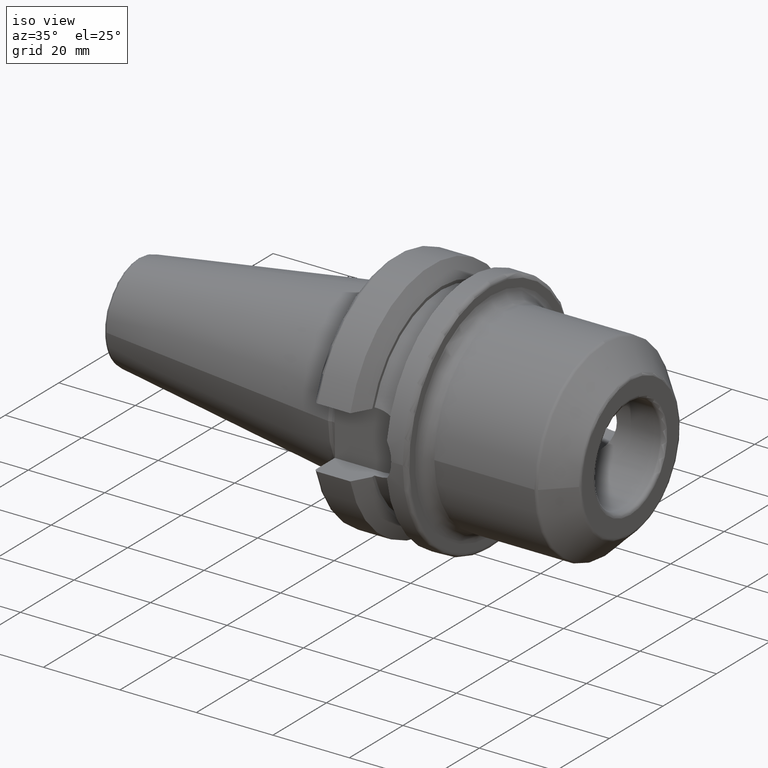
[diagram: clean part render]
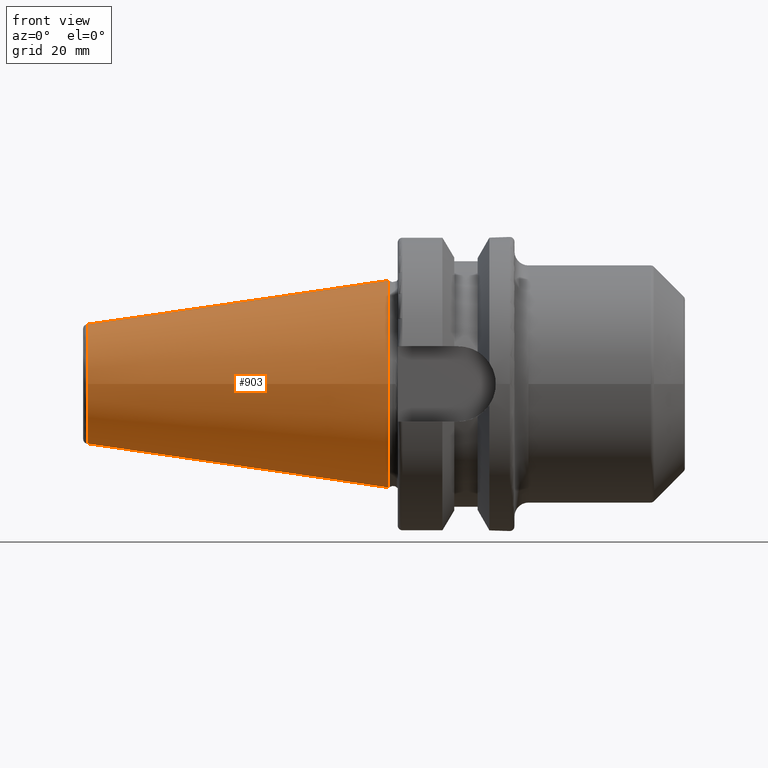
[diagram: tour spotlight — one face highlighted and labeled with its STEP entity id]
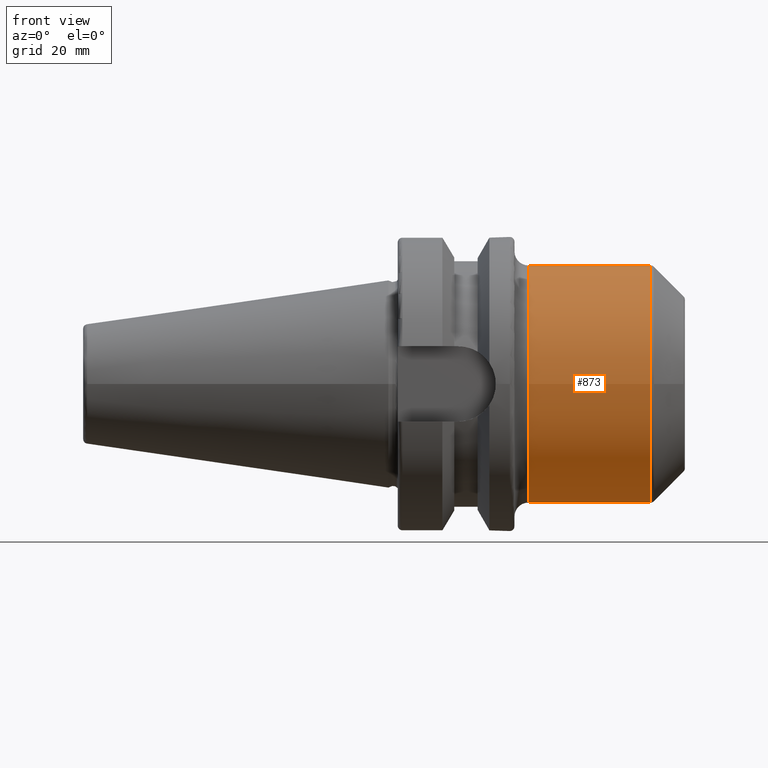
[diagram: tour spotlight — one face highlighted and labeled with its STEP entity id]
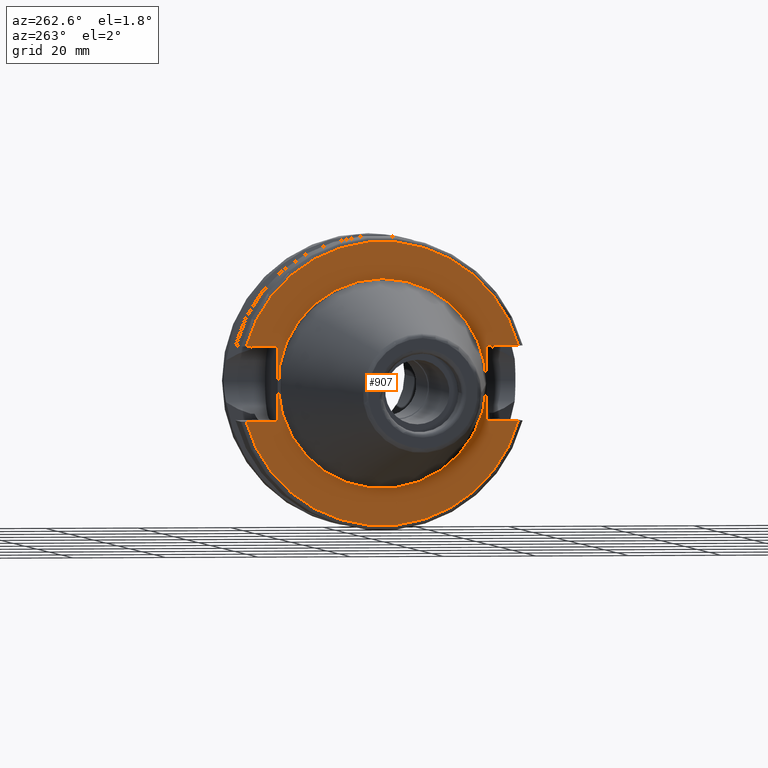
[diagram: tour spotlight — one face highlighted and labeled with its STEP entity id]
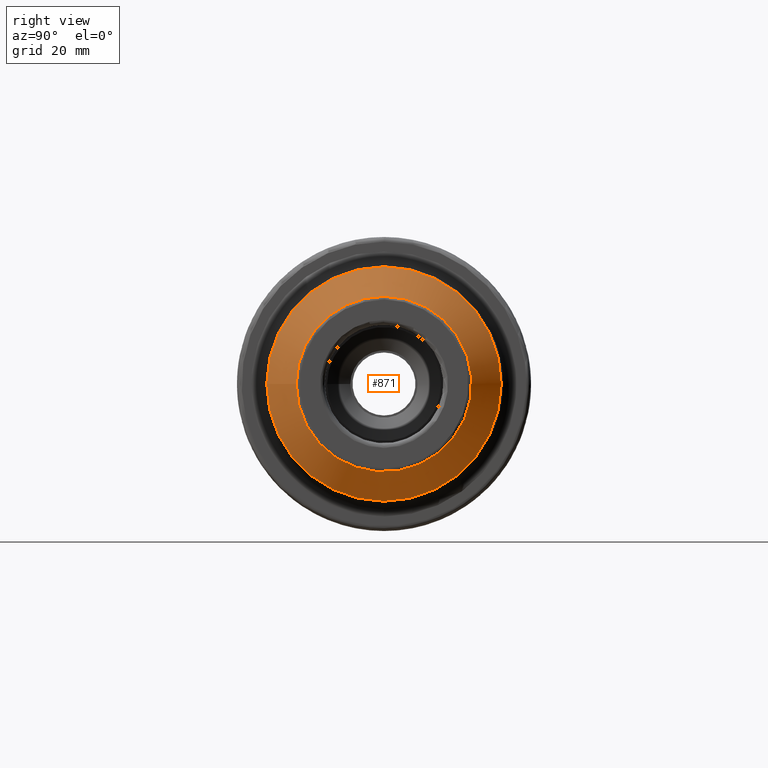
[diagram: tour spotlight — one face highlighted and labeled with its STEP entity id]
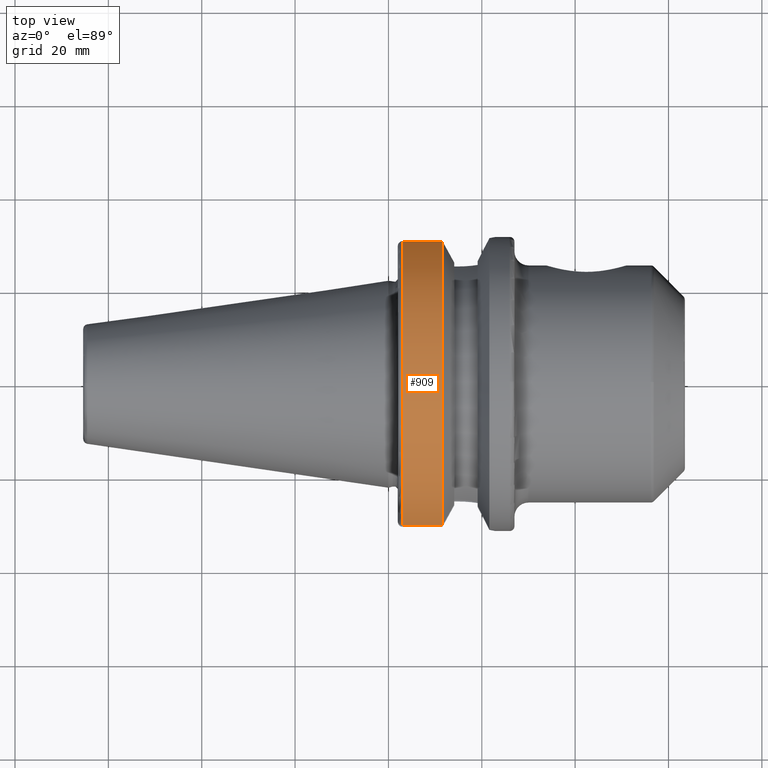
[diagram: tour spotlight — one face highlighted and labeled with its STEP entity id]
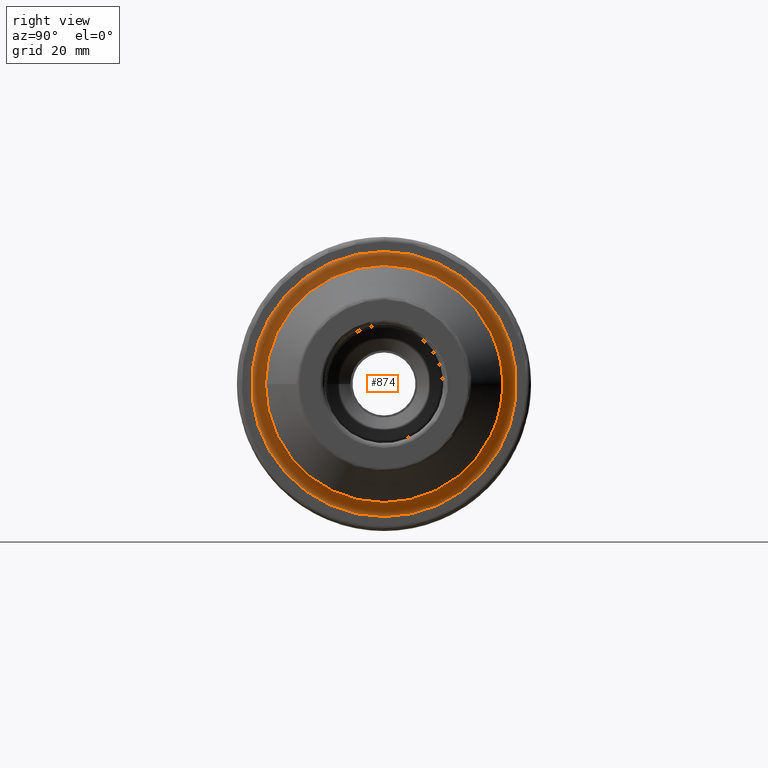
[diagram: tour spotlight — one face highlighted and labeled with its STEP entity id]
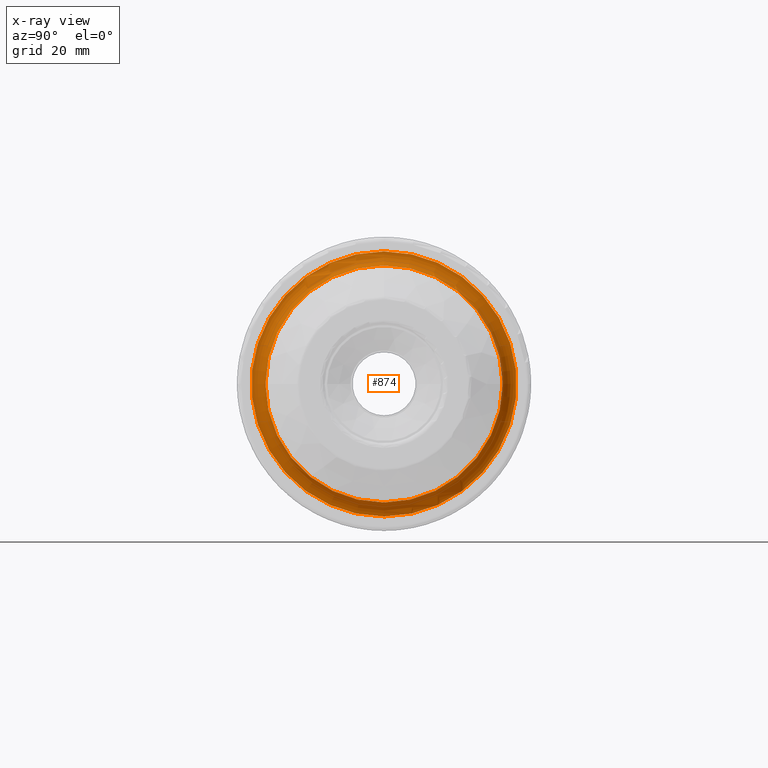
[diagram: x-ray of the same camera — body ghosted, this tour face saturated]
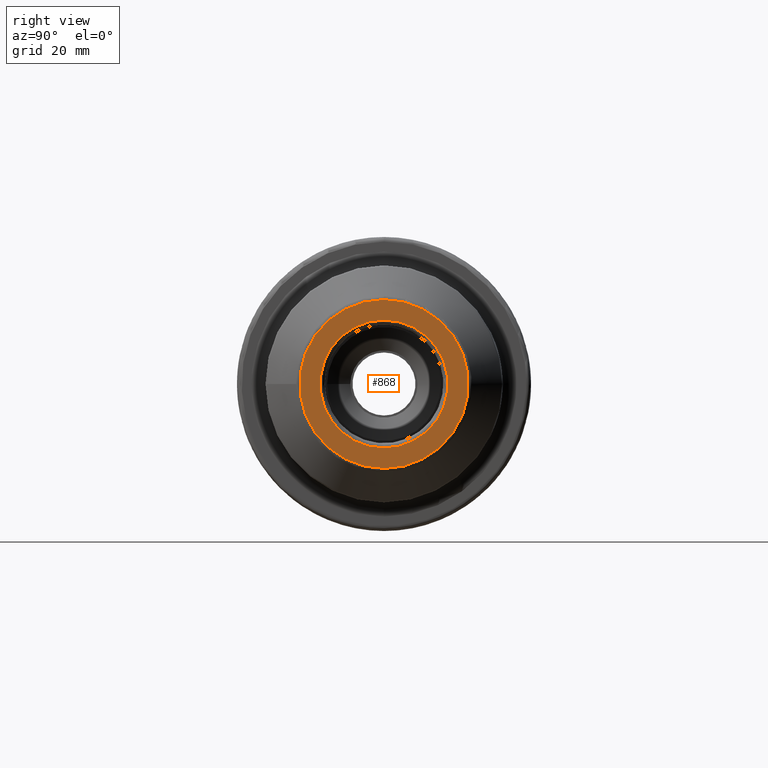
[diagram: tour spotlight — one face highlighted and labeled with its STEP entity id]
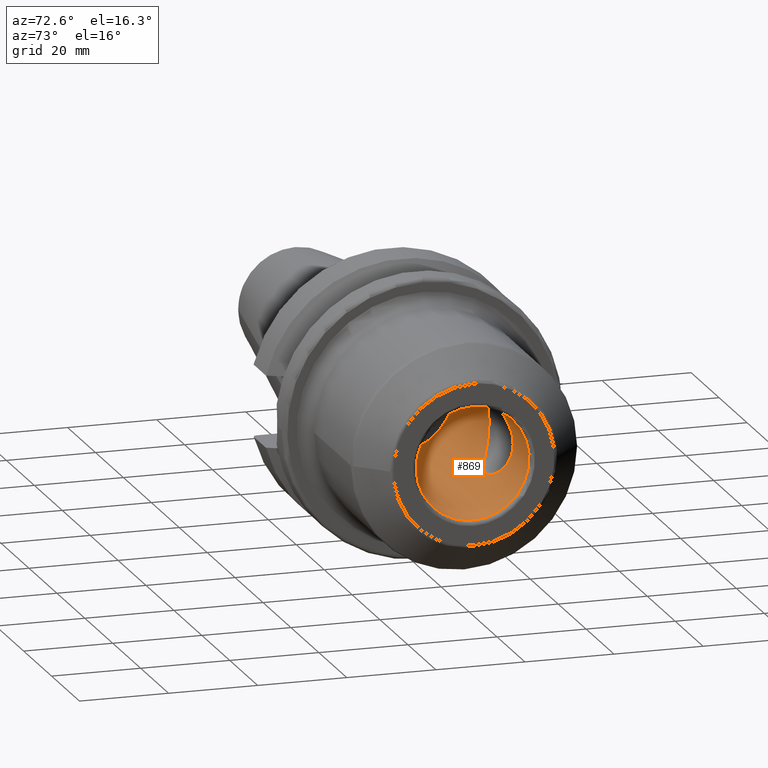
[diagram: tour spotlight — one face highlighted and labeled with its STEP entity id]
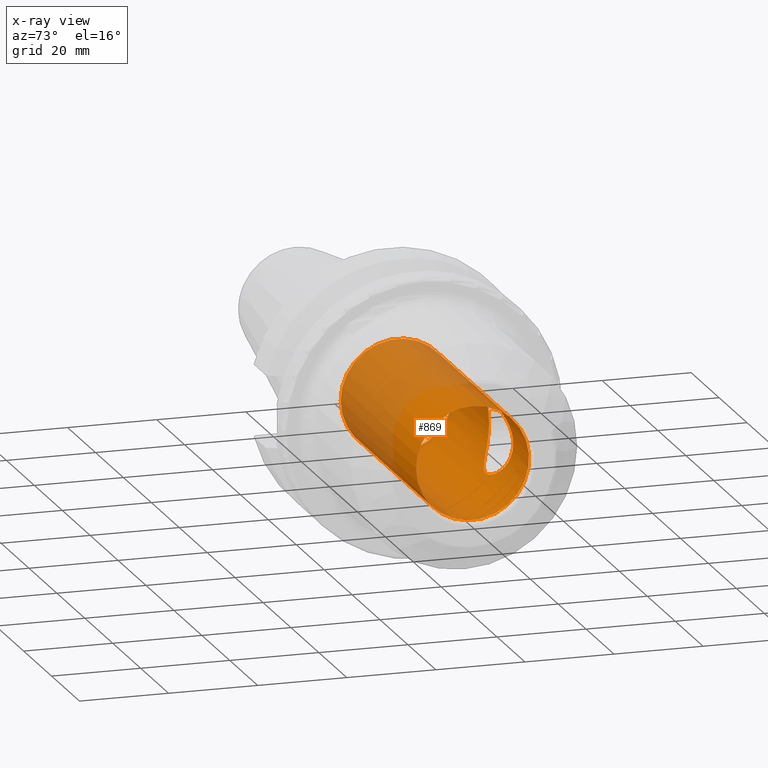
[diagram: x-ray of the same camera — body ghosted, this tour face saturated]
A machine part: a face-by-face anatomy tour. The part has 54 B-rep faces; the first image is the clean iso view, then the 8 largest visible faces are spotlighted one at a time (largest first), each with its STEP entity span.

Face 1 — front view, entity #903. In plain terms, the highlighted conical surface has half-angle 8.297 deg.
Definition (entity closure, byte-faithful):
#25=CONICAL_SURFACE('',#1025,17.5186442890469,0.144812498238939);
#88=LINE('',#1762,#134);
#134=VECTOR('',#1271,17.5186442890469);
#220=FACE_OUTER_BOUND('',#281,.T.);
#281=EDGE_LOOP('',(#776,#777,#778,#779,#780));
#343=CIRCLE('',#1021,12.8122885780937);
#344=CIRCLE('',#1022,12.8122885780937);
#347=CIRCLE('',#1026,22.225);
#441=VERTEX_POINT('',#1752);
#442=VERTEX_POINT('',#1753);
#444=VERTEX_POINT('',#1760);
#559=EDGE_CURVE('',#441,#442,#343,.T.);
#560=EDGE_CURVE('',#442,#441,#344,.T.);
#563=EDGE_CURVE('',#444,#444,#347,.T.);
#564=EDGE_CURVE('',#444,#441,#88,.T.);
#776=ORIENTED_EDGE('',*,*,#563,.F.);
#777=ORIENTED_EDGE('',*,*,#564,.T.);
#778=ORIENTED_EDGE('',*,*,#559,.T.);
#779=ORIENTED_EDGE('',*,*,#560,.T.);
#780=ORIENTED_EDGE('',*,*,#564,.F.);
#903=ADVANCED_FACE('',(#220),#25,.T.);
#1021=AXIS2_PLACEMENT_3D('',#1754,#1259,#1260);
#1022=AXIS2_PLACEMENT_3D('',#1755,#1261,#1262);
#1025=AXIS2_PLACEMENT_3D('',#1759,#1267,#1268);
#1026=AXIS2_PLACEMENT_3D('',#1761,#1269,#1270);
#1259=DIRECTION('center_axis',(1.,0.,0.));
#1260=DIRECTION('ref_axis',(0.,0.,-1.));
#1261=DIRECTION('center_axis',(1.,0.,0.));
#1262=DIRECTION('ref_axis',(0.,0.,-1.));
#1267=DIRECTION('center_axis',(1.,0.,0.));
#1268=DIRECTION('ref_axis',(0.,1.,0.));
#1269=DIRECTION('center_axis',(1.,0.,0.));
#1270=DIRECTION('ref_axis',(0.,0.,-1.));
#1271=DIRECTION('',(-0.989532981063282,0.144306893071729,1.76724974695192E-17));
#1752=CARTESIAN_POINT('',(-64.5443068930717,-12.8122885780937,-1.56905281969147E-15));
#1753=CARTESIAN_POINT('',(-64.5443068930717,-1.56905281969147E-15,12.8122885780937));
#1754=CARTESIAN_POINT('Origin',(-64.5443068930717,0.,0.));
#1755=CARTESIAN_POINT('Origin',(-64.5443068930717,0.,0.));
#1759=CARTESIAN_POINT('Origin',(-32.2721534465359,0.,0.));
#1760=CARTESIAN_POINT('',(4.44089209850063E-15,-22.225,-2.72177751110499E-15));
#1761=CARTESIAN_POINT('Origin',(0.,0.,0.));
#1762=CARTESIAN_POINT('',(-32.2721534465359,-17.5186442890469,-2.14541516539823E-15));

Face 2 — front view, entity #873. In plain terms, the highlighted cylindrical surface (bore or boss wall) has radius 25.4 mm, axis along (1, 0, 0).
Definition (entity closure, byte-faithful):
#31=B_SPLINE_CURVE_WITH_KNOTS('',3,(#1445,#1446,#1447,#1448,#1449,#1450,
#1451,#1452,#1453,#1454,#1455,#1456,#1457,#1458,#1459,#1460,#1461,#1462),
 .UNSPECIFIED.,.F.,.F.,(4,2,2,2,2,2,2,2,4),(1.31655491402046,1.64560958511095,
1.97466425620143,2.30388704212118,2.63310982804092,2.96233261396066,3.2915553998804,
3.62061007097089,3.94966474206138),.UNSPECIFIED.);
#32=B_SPLINE_CURVE_WITH_KNOTS('',3,(#1463,#1464,#1465,#1466,#1467,#1468,
#1469,#1470,#1471,#1472,#1473,#1474,#1475,#1476,#1477,#1478,#1479,#1480,
#1481),.UNSPECIFIED.,.F.,.F.,(4,2,2,2,3,2,2,2,4),(3.94966474206138,4.27871941315187,
4.60777408424235,4.9369968701621,5.26621965608184,5.59544244200158,5.92466522792132,
6.25371989901181,6.5827745701023),.UNSPECIFIED.);
#50=LINE('',#1439,#96);
#96=VECTOR('',#1109,25.4);
#141=CYLINDRICAL_SURFACE('',#964,25.4);
#158=FACE_BOUND('',#247,.T.);
#190=FACE_OUTER_BOUND('',#246,.T.);
#246=EDGE_LOOP('',(#620,#621,#622,#623,#624,#625));
#247=EDGE_LOOP('',(#626,#627));
#314=CIRCLE('',#962,25.4);
#315=CIRCLE('',#963,25.4);
#316=CIRCLE('',#965,25.4);
#317=CIRCLE('',#966,25.4);
#378=VERTEX_POINT('',#1432);
#379=VERTEX_POINT('',#1434);
#380=VERTEX_POINT('',#1438);
#381=VERTEX_POINT('',#1440);
#382=VERTEX_POINT('',#1443);
#383=VERTEX_POINT('',#1444);
#471=EDGE_CURVE('',#378,#379,#314,.T.);
#472=EDGE_CURVE('',#379,#378,#315,.T.);
#473=EDGE_CURVE('',#379,#380,#50,.T.);
#474=EDGE_CURVE('',#381,#380,#316,.T.);
#475=EDGE_CURVE('',#380,#381,#317,.T.);
#476=EDGE_CURVE('',#382,#383,#31,.T.);
#477=EDGE_CURVE('',#383,#382,#32,.T.);
#620=ORIENTED_EDGE('',*,*,#472,.F.);
#621=ORIENTED_EDGE('',*,*,#473,.T.);
#622=ORIENTED_EDGE('',*,*,#474,.F.);
#623=ORIENTED_EDGE('',*,*,#475,.F.);
#624=ORIENTED_EDGE('',*,*,#473,.F.);
#625=ORIENTED_EDGE('',*,*,#471,.F.);
#626=ORIENTED_EDGE('',*,*,#476,.T.);
#627=ORIENTED_EDGE('',*,*,#477,.T.);
#873=ADVANCED_FACE('',(#190,#158),#141,.T.);
#962=AXIS2_PLACEMENT_3D('',#1435,#1103,#1104);
#963=AXIS2_PLACEMENT_3D('',#1436,#1105,#1106);
#964=AXIS2_PLACEMENT_3D('',#1437,#1107,#1108);
#965=AXIS2_PLACEMENT_3D('',#1441,#1110,#1111);
#966=AXIS2_PLACEMENT_3D('',#1442,#1112,#1113);
#1103=DIRECTION('center_axis',(1.,0.,0.));
#1104=DIRECTION('ref_axis',(0.,-1.,1.83697019872103E-16));
#1105=DIRECTION('center_axis',(1.,0.,0.));
#1106=DIRECTION('ref_axis',(0.,-1.,1.83697019872103E-16));
#1107=DIRECTION('center_axis',(1.,0.,0.));
#1108=DIRECTION('ref_axis',(0.,1.,0.));
#1109=DIRECTION('',(-1.,0.,0.));
#1110=DIRECTION('center_axis',(-1.,0.,0.));
#1111=DIRECTION('ref_axis',(0.,-1.,-1.22464679914735E-16));
#1112=DIRECTION('center_axis',(-1.,0.,0.));
#1113=DIRECTION('ref_axis',(0.,-1.,-1.22464679914735E-16));
#1432=CARTESIAN_POINT('',(56.1857864376269,-3.11060286983428E-15,25.4));
#1434=CARTESIAN_POINT('',(56.1857864376269,-25.4,-3.11060286983428E-15));
#1435=CARTESIAN_POINT('Origin',(56.1857864376269,0.,0.));
#1436=CARTESIAN_POINT('Origin',(56.1857864376269,0.,0.));
#1437=CARTESIAN_POINT('Origin',(41.8,0.,0.));
#1438=CARTESIAN_POINT('',(30.,-25.4,-3.11060286983428E-15));
#1439=CARTESIAN_POINT('',(41.8,-25.4,-3.11060286983428E-15));
#1440=CARTESIAN_POINT('',(30.,-3.11060286983428E-15,-25.4));
#1441=CARTESIAN_POINT('Origin',(30.,0.,0.));
#1442=CARTESIAN_POINT('Origin',(30.,0.,0.));
#1443=CARTESIAN_POINT('',(33.7386,25.4,0.));
#1444=CARTESIAN_POINT('',(51.0614,25.4,0.));
#1445=CARTESIAN_POINT('Ctrl Pts',(33.7386,25.4,0.));
#1446=CARTESIAN_POINT('Ctrl Pts',(33.7386,25.4,-1.09684890363496));
#1447=CARTESIAN_POINT('Ctrl Pts',(33.9595948169007,25.3220031940979,-2.26094524708732));
#1448=CARTESIAN_POINT('Ctrl Pts',(34.8463153214761,25.0403985621892,-4.39251169936721));
#1449=CARTESIAN_POINT('Ctrl Pts',(35.5115750791868,24.8403510547288,-5.3606444283251));
#1450=CARTESIAN_POINT('Ctrl Pts',(37.0397458450538,24.4606706295937,-6.88881519419209));
#1451=CARTESIAN_POINT('Ctrl Pts',(38.0077239172898,24.2552791261336,-7.55377494668732));
#1452=CARTESIAN_POINT('Ctrl Pts',(40.1387139037547,23.9612169082044,-8.44027113836589));
#1453=CARTESIAN_POINT('Ctrl Pts',(41.3025907136008,23.8776077118291,-8.6614));
#1454=CARTESIAN_POINT('Ctrl Pts',(43.4974092863991,23.8776077118291,-8.6614));
#1455=CARTESIAN_POINT('Ctrl Pts',(44.6612860962453,23.9612169082044,-8.44027113836589));
#1456=CARTESIAN_POINT('Ctrl Pts',(46.7922760827102,24.2552791261336,-7.55377494668733));
#1457=CARTESIAN_POINT('Ctrl Pts',(47.7602541549462,24.4606706295937,-6.88881519419209));
#1458=CARTESIAN_POINT('Ctrl Pts',(49.2884249208132,24.8403510547288,-5.3606444283251));
#1459=CARTESIAN_POINT('Ctrl Pts',(49.9536846785238,25.0403985621892,-4.39251169936721));
#1460=CARTESIAN_POINT('Ctrl Pts',(50.8404051830993,25.3220031940979,-2.26094524708732));
#1461=CARTESIAN_POINT('Ctrl Pts',(51.0614,25.4,-1.09684890363496));
#1462=CARTESIAN_POINT('Ctrl Pts',(51.0614,25.4,-1.94289029309402E-15));
#1463=CARTESIAN_POINT('Ctrl Pts',(51.0614,25.4,2.77555756156289E-16));
#1464=CARTESIAN_POINT('Ctrl Pts',(51.0614,25.4,1.09684890363496));
#1465=CARTESIAN_POINT('Ctrl Pts',(50.8404051830993,25.3220031940979,2.26094524708732));
#1466=CARTESIAN_POINT('Ctrl Pts',(49.9536846785238,25.0403985621892,4.3925116993672));
#1467=CARTESIAN_POINT('Ctrl Pts',(49.2884249208132,24.8403510547288,5.3606444283251));
#1468=CARTESIAN_POINT('Ctrl Pts',(47.7602541549462,24.4606706295937,6.88881519419208));
#1469=CARTESIAN_POINT('Ctrl Pts',(46.7922760827102,24.2552791261336,7.55377494668732));
#1470=CARTESIAN_POINT('Ctrl Pts',(44.6612860962453,23.9612169082044,8.44027113836589));
#1471=CARTESIAN_POINT('Ctrl Pts',(43.4974092863991,23.8776077118291,8.6614));
#1472=CARTESIAN_POINT('Ctrl Pts',(42.4,23.8776077118291,8.6614));
#1473=CARTESIAN_POINT('Ctrl Pts',(41.3025907136008,23.8776077118291,8.6614));
#1474=CARTESIAN_POINT('Ctrl Pts',(40.1387139037547,23.9612169082044,8.44027113836589));
#1475=CARTESIAN_POINT('Ctrl Pts',(38.0077239172898,24.2552791261336,7.55377494668732));
#1476=CARTESIAN_POINT('Ctrl Pts',(37.0397458450538,24.4606706295937,6.88881519419209));
#1477=CARTESIAN_POINT('Ctrl Pts',(35.5115750791868,24.8403510547288,5.3606444283251));
#1478=CARTESIAN_POINT('Ctrl Pts',(34.8463153214761,25.0403985621892,4.39251169936721));
#1479=CARTESIAN_POINT('Ctrl Pts',(33.9595948169007,25.3220031940979,2.26094524708732));
#1480=CARTESIAN_POINT('Ctrl Pts',(33.7386,25.4,1.09684890363496));
#1481=CARTESIAN_POINT('Ctrl Pts',(33.7386,25.4,0.));

Face 3 — auxiliary view, entity #907. In plain terms, the highlighted planar face has unit normal (-1, 0, 0).
Definition (entity closure, byte-faithful):
#64=LINE('',#1596,#110);
#68=LINE('',#1604,#114);
#71=LINE('',#1624,#117);
#82=LINE('',#1724,#128);
#85=LINE('',#1745,#131);
#87=LINE('',#1748,#133);
#110=VECTOR('',#1177,10.);
#114=VECTOR('',#1183,10.);
#117=VECTOR('',#1188,10.);
#128=VECTOR('',#1243,10.);
#131=VECTOR('',#1248,10.);
#133=VECTOR('',#1252,10.);
#163=FACE_BOUND('',#286,.T.);
#179=PLANE('',#1035);
#224=FACE_OUTER_BOUND('',#285,.T.);
#285=EDGE_LOOP('',(#795,#796,#797,#798,#799,#800,#801,#802));
#286=EDGE_LOOP('',(#803));
#340=CIRCLE('',#1012,30.5);
#352=CIRCLE('',#1034,22.5);
#353=CIRCLE('',#1036,30.5);
#409=VERTEX_POINT('',#1584);
#410=VERTEX_POINT('',#1595);
#412=VERTEX_POINT('',#1601);
#413=VERTEX_POINT('',#1603);
#428=VERTEX_POINT('',#1684);
#435=VERTEX_POINT('',#1721);
#436=VERTEX_POINT('',#1723);
#440=VERTEX_POINT('',#1744);
#448=VERTEX_POINT('',#1774);
#511=EDGE_CURVE('',#410,#409,#64,.T.);
#515=EDGE_CURVE('',#413,#412,#68,.T.);
#520=EDGE_CURVE('',#412,#410,#71,.T.);
#540=EDGE_CURVE('',#413,#428,#340,.T.);
#550=EDGE_CURVE('',#436,#435,#82,.T.);
#555=EDGE_CURVE('',#440,#428,#85,.T.);
#557=EDGE_CURVE('',#435,#440,#87,.T.);
#571=EDGE_CURVE('',#448,#448,#352,.T.);
#572=EDGE_CURVE('',#436,#409,#353,.T.);
#795=ORIENTED_EDGE('',*,*,#511,.T.);
#796=ORIENTED_EDGE('',*,*,#572,.F.);
#797=ORIENTED_EDGE('',*,*,#550,.T.);
#798=ORIENTED_EDGE('',*,*,#557,.T.);
#799=ORIENTED_EDGE('',*,*,#555,.T.);
#800=ORIENTED_EDGE('',*,*,#540,.F.);
#801=ORIENTED_EDGE('',*,*,#515,.T.);
#802=ORIENTED_EDGE('',*,*,#520,.T.);
#803=ORIENTED_EDGE('',*,*,#571,.T.);
#907=ADVANCED_FACE('',(#224,#163),#179,.T.);
#1012=AXIS2_PLACEMENT_3D('',#1685,#1230,#1231);
#1034=AXIS2_PLACEMENT_3D('',#1776,#1288,#1289);
#1035=AXIS2_PLACEMENT_3D('',#1777,#1290,#1291);
#1036=AXIS2_PLACEMENT_3D('',#1778,#1292,#1293);
#1177=DIRECTION('',(0.,-1.,0.));
#1183=DIRECTION('',(0.,1.,0.));
#1188=DIRECTION('',(0.,0.,1.));
#1230=DIRECTION('center_axis',(1.,0.,0.));
#1231=DIRECTION('ref_axis',(0.,0.,-1.));
#1243=DIRECTION('',(0.,-1.,0.));
#1248=DIRECTION('',(0.,1.,0.));
#1252=DIRECTION('',(0.,0.,-1.));
#1288=DIRECTION('center_axis',(1.,0.,0.));
#1289=DIRECTION('ref_axis',(0.,0.,-1.));
#1290=DIRECTION('center_axis',(-1.,0.,0.));
#1291=DIRECTION('ref_axis',(0.,0.,1.));
#1292=DIRECTION('center_axis',(1.,0.,0.));
#1293=DIRECTION('ref_axis',(0.,0.,-1.));
#1584=CARTESIAN_POINT('',(1.99999999999999,-29.4184890842477,8.05));
#1595=CARTESIAN_POINT('',(1.99999999999999,-22.6,8.05));
#1596=CARTESIAN_POINT('',(1.99999999999999,3.95,8.05));
#1601=CARTESIAN_POINT('',(1.99999999999999,-22.6,-8.05));
#1603=CARTESIAN_POINT('',(1.99999999999999,-29.4184890842477,-8.05));
#1604=CARTESIAN_POINT('',(1.99999999999999,3.95,-8.05));
#1624=CARTESIAN_POINT('',(1.99999999999999,-22.6,0.));
#1684=CARTESIAN_POINT('',(1.99999999999999,29.4184890842477,-8.05));
#1685=CARTESIAN_POINT('Origin',(1.99999999999999,0.,0.));
#1721=CARTESIAN_POINT('',(1.99999999999999,22.6,8.05));
#1723=CARTESIAN_POINT('',(1.99999999999999,29.4184890842477,8.05));
#1724=CARTESIAN_POINT('',(1.99999999999999,26.55,8.05));
#1744=CARTESIAN_POINT('',(1.99999999999999,22.6,-8.05));
#1745=CARTESIAN_POINT('',(1.99999999999999,26.55,-8.05));
#1748=CARTESIAN_POINT('',(1.99999999999999,22.6,0.));
#1774=CARTESIAN_POINT('',(2.,-2.75545529808154E-15,22.5));
#1776=CARTESIAN_POINT('Origin',(2.,0.,0.));
#1777=CARTESIAN_POINT('Origin',(1.99999999999999,30.5,0.));
#1778=CARTESIAN_POINT('Origin',(1.99999999999999,0.,0.));

Face 4 — right view, entity #871. In plain terms, the highlighted conical surface has half-angle 45 deg.
Definition (entity closure, byte-faithful):
#19=CONICAL_SURFACE('',#957,21.95,0.785398163397449);
#49=LINE('',#1427,#95);
#95=VECTOR('',#1094,21.95);
#188=FACE_OUTER_BOUND('',#244,.T.);
#244=EDGE_LOOP('',(#608,#609,#610,#611,#612,#613));
#309=CIRCLE('',#955,18.7928932188134);
#310=CIRCLE('',#956,18.7928932188134);
#311=CIRCLE('',#958,25.1071067811865);
#312=CIRCLE('',#959,25.1071067811865);
#374=VERTEX_POINT('',#1420);
#375=VERTEX_POINT('',#1422);
#376=VERTEX_POINT('',#1426);
#377=VERTEX_POINT('',#1428);
#465=EDGE_CURVE('',#374,#375,#309,.T.);
#466=EDGE_CURVE('',#375,#374,#310,.T.);
#467=EDGE_CURVE('',#375,#376,#49,.T.);
#468=EDGE_CURVE('',#377,#376,#311,.T.);
#469=EDGE_CURVE('',#376,#377,#312,.T.);
#608=ORIENTED_EDGE('',*,*,#466,.F.);
#609=ORIENTED_EDGE('',*,*,#467,.T.);
#610=ORIENTED_EDGE('',*,*,#468,.F.);
#611=ORIENTED_EDGE('',*,*,#469,.F.);
#612=ORIENTED_EDGE('',*,*,#467,.F.);
#613=ORIENTED_EDGE('',*,*,#465,.F.);
#871=ADVANCED_FACE('',(#188),#19,.T.);
#955=AXIS2_PLACEMENT_3D('',#1423,#1088,#1089);
#956=AXIS2_PLACEMENT_3D('',#1424,#1090,#1091);
#957=AXIS2_PLACEMENT_3D('',#1425,#1092,#1093);
#958=AXIS2_PLACEMENT_3D('',#1429,#1095,#1096);
#959=AXIS2_PLACEMENT_3D('',#1430,#1097,#1098);
#1088=DIRECTION('center_axis',(1.,0.,0.));
#1089=DIRECTION('ref_axis',(0.,-1.,3.06161699786838E-17));
#1090=DIRECTION('center_axis',(1.,0.,0.));
#1091=DIRECTION('ref_axis',(0.,-1.,3.06161699786838E-17));
#1092=DIRECTION('center_axis',(-1.,0.,0.));
#1093=DIRECTION('ref_axis',(0.,1.,0.));
#1094=DIRECTION('',(-0.707106781186547,-0.707106781186548,-8.65956056235494E-17));
#1095=DIRECTION('center_axis',(-1.,0.,0.));
#1096=DIRECTION('ref_axis',(0.,-1.,3.06161699786838E-17));
#1097=DIRECTION('center_axis',(-1.,0.,0.));
#1098=DIRECTION('ref_axis',(0.,-1.,3.06161699786838E-17));
#1420=CARTESIAN_POINT('',(63.2071067811865,-2.30146565271379E-15,18.7928932188134));
#1422=CARTESIAN_POINT('',(63.2071067811866,-18.7928932188134,-2.30146565271379E-15));
#1423=CARTESIAN_POINT('Origin',(63.2071067811865,0.,-2.87683206589224E-15));
#1424=CARTESIAN_POINT('Origin',(63.2071067811865,0.,-2.87683206589224E-15));
#1425=CARTESIAN_POINT('Origin',(60.05,0.,0.));
#1426=CARTESIAN_POINT('',(56.8928932188135,-25.1071067811866,-3.07473379554309E-15));
#1427=CARTESIAN_POINT('',(60.05,-21.95,-2.68809972412844E-15));
#1428=CARTESIAN_POINT('',(56.8928932188135,-3.07473379554309E-15,25.1071067811865));
#1429=CARTESIAN_POINT('Origin',(56.8928932188135,0.,-3.84341724442886E-15));
#1430=CARTESIAN_POINT('Origin',(56.8928932188135,0.,-3.84341724442886E-15));

Face 5 — top view, entity #909. In plain terms, the highlighted cylindrical surface (partial cylindrical patch) has radius 31.5 mm, axis along (1, 0, 0).
Definition (entity closure, byte-faithful):
#63=LINE('',#1583,#109);
#83=LINE('',#1737,#129);
#109=VECTOR('',#1176,10.);
#129=VECTOR('',#1244,10.);
#152=CYLINDRICAL_SURFACE('',#1039,31.5);
#226=FACE_OUTER_BOUND('',#288,.T.);
#288=EDGE_LOOP('',(#808,#809,#810,#811));
#354=CIRCLE('',#1038,31.5);
#355=CIRCLE('',#1040,31.5000000000001);
#407=VERTEX_POINT('',#1578);
#408=VERTEX_POINT('',#1582);
#437=VERTEX_POINT('',#1725);
#438=VERTEX_POINT('',#1736);
#509=EDGE_CURVE('',#408,#407,#63,.T.);
#552=EDGE_CURVE('',#438,#437,#83,.T.);
#573=EDGE_CURVE('',#437,#408,#354,.T.);
#574=EDGE_CURVE('',#438,#407,#355,.T.);
#808=ORIENTED_EDGE('',*,*,#509,.T.);
#809=ORIENTED_EDGE('',*,*,#574,.F.);
#810=ORIENTED_EDGE('',*,*,#552,.T.);
#811=ORIENTED_EDGE('',*,*,#573,.T.);
#909=ADVANCED_FACE('',(#226),#152,.T.);
#1038=AXIS2_PLACEMENT_3D('',#1780,#1296,#1297);
#1039=AXIS2_PLACEMENT_3D('',#1781,#1298,#1299);
#1040=AXIS2_PLACEMENT_3D('',#1782,#1300,#1301);
#1176=DIRECTION('',(1.,0.,0.));
#1244=DIRECTION('',(-1.,0.,0.));
#1296=DIRECTION('center_axis',(1.,0.,0.));
#1297=DIRECTION('ref_axis',(0.,0.,-1.));
#1298=DIRECTION('center_axis',(1.,0.,0.));
#1299=DIRECTION('ref_axis',(0.,1.,0.));
#1300=DIRECTION('center_axis',(1.,0.,0.));
#1301=DIRECTION('ref_axis',(0.,0.,-1.));
#1578=CARTESIAN_POINT('',(11.5690363073382,-30.4540227227866,8.05));
#1582=CARTESIAN_POINT('',(2.99999999999999,-30.4540227227866,8.05));
#1583=CARTESIAN_POINT('',(7.28451815366907,-30.4540227227866,8.05));
#1725=CARTESIAN_POINT('',(2.99999999999999,30.4540227227866,8.05));
#1736=CARTESIAN_POINT('',(11.5690363073382,30.4540227227866,8.05));
#1737=CARTESIAN_POINT('',(7.28451815366907,30.4540227227866,8.05));
#1780=CARTESIAN_POINT('Origin',(2.99999999999999,0.,0.));
#1781=CARTESIAN_POINT('Origin',(7.28451815366907,0.,0.));
#1782=CARTESIAN_POINT('Origin',(11.5690363073382,0.,0.));

Face 6 — right view, entity #874. An x-ray twin of the same camera follows (body ghosted, this face saturated) — the face is partly hidden behind the body. In plain terms, the highlighted toroidal blend (fillet) surface has major radius 28.4 mm and minor (blend) radius 3 mm.
Definition (entity closure, byte-faithful):
#191=FACE_OUTER_BOUND('',#248,.T.);
#248=EDGE_LOOP('',(#628,#629,#630,#631,#632));
#316=CIRCLE('',#965,25.4);
#317=CIRCLE('',#966,25.4);
#318=CIRCLE('',#968,3.);
#319=CIRCLE('',#969,28.4);
#380=VERTEX_POINT('',#1438);
#381=VERTEX_POINT('',#1440);
#384=VERTEX_POINT('',#1483);
#474=EDGE_CURVE('',#381,#380,#316,.T.);
#475=EDGE_CURVE('',#380,#381,#317,.T.);
#478=EDGE_CURVE('',#381,#384,#318,.T.);
#479=EDGE_CURVE('',#384,#384,#319,.T.);
#628=ORIENTED_EDGE('',*,*,#475,.T.);
#629=ORIENTED_EDGE('',*,*,#478,.T.);
#630=ORIENTED_EDGE('',*,*,#479,.T.);
#631=ORIENTED_EDGE('',*,*,#478,.F.);
#632=ORIENTED_EDGE('',*,*,#474,.T.);
#860=TOROIDAL_SURFACE('',#967,28.4,3.);
#874=ADVANCED_FACE('',(#191),#860,.F.);
#965=AXIS2_PLACEMENT_3D('',#1441,#1110,#1111);
#966=AXIS2_PLACEMENT_3D('',#1442,#1112,#1113);
#967=AXIS2_PLACEMENT_3D('',#1482,#1114,#1115);
#968=AXIS2_PLACEMENT_3D('',#1484,#1116,#1117);
#969=AXIS2_PLACEMENT_3D('',#1485,#1118,#1119);
#1110=DIRECTION('center_axis',(-1.,0.,0.));
#1111=DIRECTION('ref_axis',(0.,-1.,-1.22464679914735E-16));
#1112=DIRECTION('center_axis',(-1.,0.,0.));
#1113=DIRECTION('ref_axis',(0.,-1.,-1.22464679914735E-16));
#1114=DIRECTION('center_axis',(-1.,0.,0.));
#1115=DIRECTION('ref_axis',(0.,0.,1.));
#1116=DIRECTION('center_axis',(0.,-1.,1.22464679914735E-16));
#1117=DIRECTION('ref_axis',(0.,-1.22464679914735E-16,-1.));
#1118=DIRECTION('center_axis',(1.,0.,0.));
#1119=DIRECTION('ref_axis',(0.,-1.,-1.22464679914735E-16));
#1438=CARTESIAN_POINT('',(30.,-25.4,-3.11060286983428E-15));
#1440=CARTESIAN_POINT('',(30.,-3.11060286983428E-15,-25.4));
#1441=CARTESIAN_POINT('Origin',(30.,0.,0.));
#1442=CARTESIAN_POINT('Origin',(30.,0.,0.));
#1482=CARTESIAN_POINT('Origin',(30.,0.,0.));
#1483=CARTESIAN_POINT('',(27.,-3.47799690957848E-15,-28.4));
#1484=CARTESIAN_POINT('Origin',(30.,-3.47799690957848E-15,-28.4));
#1485=CARTESIAN_POINT('Origin',(27.,0.,0.));

Face 7 — right view, entity #868. In plain terms, the highlighted planar face has unit normal (1, 0, 0).
Definition (entity closure, byte-faithful):
#156=FACE_BOUND('',#240,.T.);
#166=PLANE('',#949);
#185=FACE_OUTER_BOUND('',#239,.T.);
#239=EDGE_LOOP('',(#594));
#240=EDGE_LOOP('',(#595));
#305=CIRCLE('',#948,13.7);
#306=CIRCLE('',#950,18.0857864376269);
#369=VERTEX_POINT('',#1355);
#370=VERTEX_POINT('',#1359);
#458=EDGE_CURVE('',#369,#369,#305,.T.);
#459=EDGE_CURVE('',#370,#370,#306,.T.);
#594=ORIENTED_EDGE('',*,*,#459,.F.);
#595=ORIENTED_EDGE('',*,*,#458,.F.);
#868=ADVANCED_FACE('',(#185,#156),#166,.T.);
#948=AXIS2_PLACEMENT_3D('',#1357,#1073,#1074);
#949=AXIS2_PLACEMENT_3D('',#1358,#1075,#1076);
#950=AXIS2_PLACEMENT_3D('',#1360,#1077,#1078);
#1073=DIRECTION('center_axis',(1.,0.,0.));
#1074=DIRECTION('ref_axis',(0.,-1.,1.83697019872103E-16));
#1075=DIRECTION('center_axis',(1.,0.,0.));
#1076=DIRECTION('ref_axis',(0.,0.,-1.));
#1077=DIRECTION('center_axis',(-1.,0.,0.));
#1078=DIRECTION('ref_axis',(0.,-1.,1.83697019872103E-16));
#1355=CARTESIAN_POINT('',(63.5,-1.67776611483187E-15,13.7));
#1357=CARTESIAN_POINT('Origin',(63.5,0.,0.));
#1358=CARTESIAN_POINT('Origin',(63.5,12.7,0.));
#1359=CARTESIAN_POINT('',(63.5,-2.21487004709024E-15,18.0857864376269));
#1360=CARTESIAN_POINT('Origin',(63.5,0.,0.));

Face 8 — auxiliary view, entity #869. An x-ray twin of the same camera follows (body ghosted, this face saturated) — the face is partly hidden behind the body. In plain terms, the highlighted cylindrical surface (bore or boss wall) has radius 12.7 mm, axis along (1, 0, 0).
Definition (entity closure, byte-faithful):
#29=B_SPLINE_CURVE_WITH_KNOTS('',3,(#1367,#1368,#1369,#1370,#1371,#1372,
#1373,#1374,#1375,#1376,#1377,#1378,#1379,#1380),.UNSPECIFIED.,.F.,.F.,
(4,2,2,2,2,2,4),(0.,0.230210178352453,0.460420356704906,0.693083526853888,
0.92574669700287,1.13302634981961,1.34030600263635),.UNSPECIFIED.);
#30=B_SPLINE_CURVE_WITH_KNOTS('',3,(#1381,#1382,#1383,#1384,#1385,#1386,
#1387,#1388,#1389,#1390,#1391,#1392,#1393,#1394,#1395,#1396,#1397,#1398,
#1399,#1400,#1401,#1402,#1403,#1404,#1405,#1406,#1407,#1408,#1409,#1410,
#1411,#1412,#1413,#1414,#1415,#1416,#1417,#1418),.UNSPECIFIED.,.F.,.F.,
(4,2,2,2,2,2,2,2,2,2,2,2,2,2,2,2,2,2,4),(1.34030600263635,1.54758565545309,
1.75486530826983,1.98752847841881,2.22019164856779,2.45040182692025,2.6806120052727,
2.91082218362515,3.14103236197761,3.37369553212659,3.60635870227557,3.81363835509231,
4.02091800790905,4.22819766072579,4.43547731354253,4.66814048369151,4.9008036538405,
5.13101383219295,5.3612240105454),.UNSPECIFIED.);
#48=LINE('',#1363,#94);
#94=VECTOR('',#1081,12.7);
#140=CYLINDRICAL_SURFACE('',#951,12.7);
#157=FACE_BOUND('',#242,.T.);
#186=FACE_OUTER_BOUND('',#241,.T.);
#241=EDGE_LOOP('',(#596,#597,#598,#599,#600));
#242=EDGE_LOOP('',(#601,#602));
#302=CIRCLE('',#945,12.7);
#303=CIRCLE('',#946,12.7);
#307=CIRCLE('',#952,12.7);
#367=VERTEX_POINT('',#1351);
#368=VERTEX_POINT('',#1352);
#371=VERTEX_POINT('',#1362);
#372=VERTEX_POINT('',#1365);
#373=VERTEX_POINT('',#1366);
#455=EDGE_CURVE('',#367,#368,#302,.T.);
#456=EDGE_CURVE('',#368,#367,#303,.T.);
#460=EDGE_CURVE('',#368,#371,#48,.T.);
#461=EDGE_CURVE('',#371,#371,#307,.T.);
#462=EDGE_CURVE('',#372,#373,#29,.T.);
#463=EDGE_CURVE('',#373,#372,#30,.T.);
#596=ORIENTED_EDGE('',*,*,#455,.F.);
#597=ORIENTED_EDGE('',*,*,#456,.F.);
#598=ORIENTED_EDGE('',*,*,#460,.T.);
#599=ORIENTED_EDGE('',*,*,#461,.T.);
#600=ORIENTED_EDGE('',*,*,#460,.F.);
#601=ORIENTED_EDGE('',*,*,#462,.T.);
#602=ORIENTED_EDGE('',*,*,#463,.T.);
#869=ADVANCED_FACE('',(#186,#157),#140,.F.);
#945=AXIS2_PLACEMENT_3D('',#1353,#1067,#1068);
#946=AXIS2_PLACEMENT_3D('',#1354,#1069,#1070);
#951=AXIS2_PLACEMENT_3D('',#1361,#1079,#1080);
#952=AXIS2_PLACEMENT_3D('',#1364,#1082,#1083);
#1067=DIRECTION('center_axis',(-1.,0.,0.));
#1068=DIRECTION('ref_axis',(0.,-1.,1.83697019872103E-16));
#1069=DIRECTION('center_axis',(-1.,0.,0.));
#1070=DIRECTION('ref_axis',(0.,-1.,1.83697019872103E-16));
#1079=DIRECTION('center_axis',(1.,0.,0.));
#1080=DIRECTION('ref_axis',(0.,1.,0.));
#1081=DIRECTION('',(-1.,0.,0.));
#1082=DIRECTION('center_axis',(-1.,0.,0.));
#1083=DIRECTION('ref_axis',(0.,0.,1.));
#1351=CARTESIAN_POINT('',(62.5,-1.55530143491714E-15,12.7));
#1352=CARTESIAN_POINT('',(62.5,-12.7,-1.55530143491714E-15));
#1353=CARTESIAN_POINT('Origin',(62.5,0.,0.));
#1354=CARTESIAN_POINT('Origin',(62.5,0.,0.));
#1361=CARTESIAN_POINT('Origin',(45.25,0.,0.));
#1362=CARTESIAN_POINT('',(8.5,-12.7,-1.55530143491714E-15));
#1363=CARTESIAN_POINT('',(45.25,-12.7,-1.55530143491714E-15));
#1364=CARTESIAN_POINT('Origin',(8.49999999999999,0.,0.));
#1365=CARTESIAN_POINT('',(42.4,9.28817258883576,8.6614));
#1366=CARTESIAN_POINT('',(51.0614,12.7,-2.05691444816633E-15));
#1367=CARTESIAN_POINT('Ctrl Pts',(42.4,9.28817258883576,8.6614));
#1368=CARTESIAN_POINT('Ctrl Pts',(43.1673672611748,9.28817258883576,8.6614));
#1369=CARTESIAN_POINT('Ctrl Pts',(43.9858957782378,9.39286972665493,8.55264024866676));
#1370=CARTESIAN_POINT('Ctrl Pts',(45.5289519262639,9.77247370980056,8.11618127426884));
#1371=CARTESIAN_POINT('Ctrl Pts',(46.2552534395171,10.0411649414725,7.78937187446292));
#1372=CARTESIAN_POINT('Ctrl Pts',(47.4939623257863,10.5784623099762,7.04272156428609));
#1373=CARTESIAN_POINT('Ctrl Pts',(48.1132967484189,10.8953979926107,6.55686730549501));
#1374=CARTESIAN_POINT('Ctrl Pts',(49.1976135123252,11.5011078891644,5.42464029111456));
#1375=CARTESIAN_POINT('Ctrl Pts',(49.6628587501108,11.7874735866629,4.777232351146));
#1376=CARTESIAN_POINT('Ctrl Pts',(50.3313550647032,12.2113564696458,3.54273323733867));
#1377=CARTESIAN_POINT('Ctrl Pts',(50.6076602743295,12.3942512400347,2.86281353694394));
#1378=CARTESIAN_POINT('Ctrl Pts',(50.9729902801836,12.6391431201531,1.43708957909458));
#1379=CARTESIAN_POINT('Ctrl Pts',(51.0614,12.7,0.690932176055798));
#1380=CARTESIAN_POINT('Ctrl Pts',(51.0614,12.7,-2.22044604925031E-15));
#1381=CARTESIAN_POINT('Ctrl Pts',(51.0614,12.7,-3.05311331771918E-15));
#1382=CARTESIAN_POINT('Ctrl Pts',(51.0614,12.7,-0.690932176055802));
#1383=CARTESIAN_POINT('Ctrl Pts',(50.9729902801836,12.6391431201531,-1.43708957909458));
#1384=CARTESIAN_POINT('Ctrl Pts',(50.6076602743295,12.3942512400347,-2.86281353694394));
#1385=CARTESIAN_POINT('Ctrl Pts',(50.3313550647033,12.2113564696458,-3.54273323733867));
#1386=CARTESIAN_POINT('Ctrl Pts',(49.6628587501109,11.7874735866629,-4.777232351146));
#1387=CARTESIAN_POINT('Ctrl Pts',(49.1976135123252,11.5011078891644,-5.42464029111456));
#1388=CARTESIAN_POINT('Ctrl Pts',(48.1132967484189,10.8953979926107,-6.55686730549501));
#1389=CARTESIAN_POINT('Ctrl Pts',(47.4939623257863,10.5784623099762,-7.04272156428609));
#1390=CARTESIAN_POINT('Ctrl Pts',(46.2552534395171,10.0411649414725,-7.78937187446292));
#1391=CARTESIAN_POINT('Ctrl Pts',(45.5289519262639,9.77247370980056,-8.11618127426884));
#1392=CARTESIAN_POINT('Ctrl Pts',(43.9858957782378,9.39286972665493,-8.55264024866676));
#1393=CARTESIAN_POINT('Ctrl Pts',(43.1673672611748,9.28817258883576,-8.6614));
#1394=CARTESIAN_POINT('Ctrl Pts',(41.6326327388252,9.28817258883576,-8.6614));
#1395=CARTESIAN_POINT('Ctrl Pts',(40.8141042217622,9.39286972665493,-8.55264024866676));
#1396=CARTESIAN_POINT('Ctrl Pts',(39.2710480737361,9.77247370980056,-8.11618127426884));
#1397=CARTESIAN_POINT('Ctrl Pts',(38.5447465604828,10.0411649414725,-7.78937187446292));
#1398=CARTESIAN_POINT('Ctrl Pts',(37.3060376742137,10.5784623099762,-7.04272156428609));
#1399=CARTESIAN_POINT('Ctrl Pts',(36.6867032515811,10.8953979926107,-6.55686730549501));
#1400=CARTESIAN_POINT('Ctrl Pts',(35.6023864876748,11.5011078891644,-5.42464029111456));
#1401=CARTESIAN_POINT('Ctrl Pts',(35.1371412498891,11.7874735866629,-4.777232351146));
#1402=CARTESIAN_POINT('Ctrl Pts',(34.4686449352967,12.2113564696458,-3.54273323733867));
#1403=CARTESIAN_POINT('Ctrl Pts',(34.1923397256705,12.3942512400347,-2.86281353694394));
#1404=CARTESIAN_POINT('Ctrl Pts',(33.8270097198164,12.6391431201531,-1.43708957909458));
#1405=CARTESIAN_POINT('Ctrl Pts',(33.7386,12.7,-0.690932176055801));
#1406=CARTESIAN_POINT('Ctrl Pts',(33.7386,12.7,0.690932176055798));
#1407=CARTESIAN_POINT('Ctrl Pts',(33.8270097198164,12.6391431201531,1.43708957909458));
#1408=CARTESIAN_POINT('Ctrl Pts',(34.1923397256705,12.3942512400347,2.86281353694394));
#1409=CARTESIAN_POINT('Ctrl Pts',(34.4686449352967,12.2113564696458,3.54273323733867));
#1410=CARTESIAN_POINT('Ctrl Pts',(35.1371412498891,11.7874735866629,4.77723235114599));
#1411=CARTESIAN_POINT('Ctrl Pts',(35.6023864876748,11.5011078891644,5.42464029111456));
#1412=CARTESIAN_POINT('Ctrl Pts',(36.6867032515811,10.8953979926107,6.55686730549501));
#1413=CARTESIAN_POINT('Ctrl Pts',(37.3060376742137,10.5784623099762,7.04272156428609));
#1414=CARTESIAN_POINT('Ctrl Pts',(38.5447465604828,10.0411649414725,7.78937187446292));
#1415=CARTESIAN_POINT('Ctrl Pts',(39.2710480737361,9.77247370980056,8.11618127426884));
#1416=CARTESIAN_POINT('Ctrl Pts',(40.8141042217622,9.39286972665493,8.55264024866676));
#1417=CARTESIAN_POINT('Ctrl Pts',(41.6326327388252,9.28817258883576,8.6614));
#1418=CARTESIAN_POINT('Ctrl Pts',(42.4,9.28817258883576,8.6614));